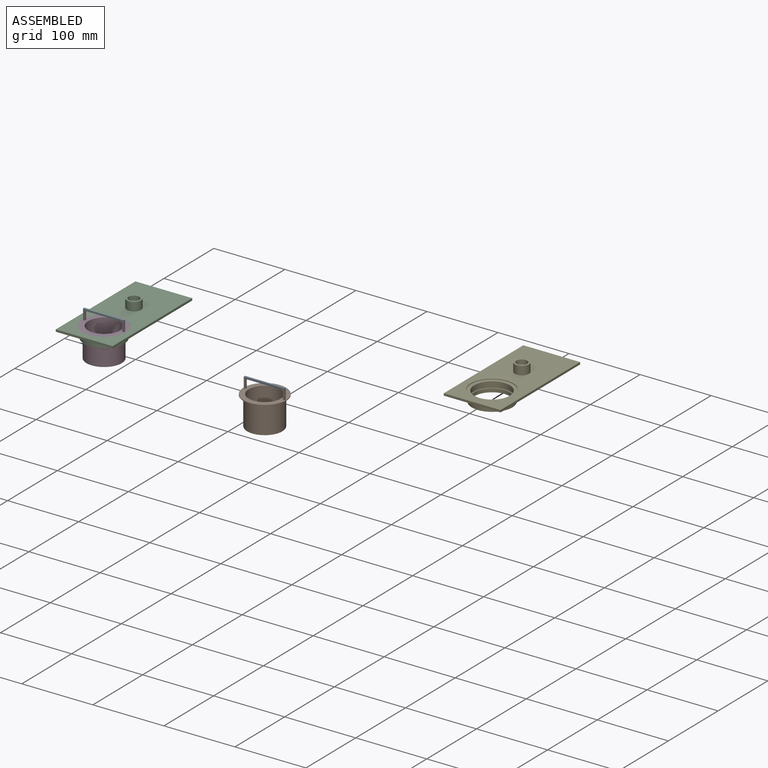
[diagram: assembled view]
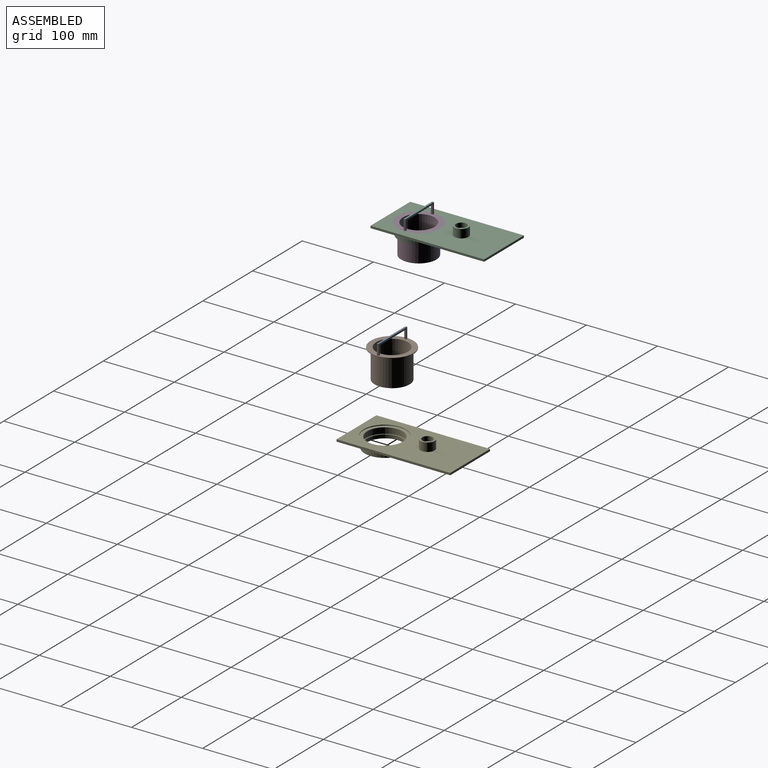
[diagram: assembled view, second angle]
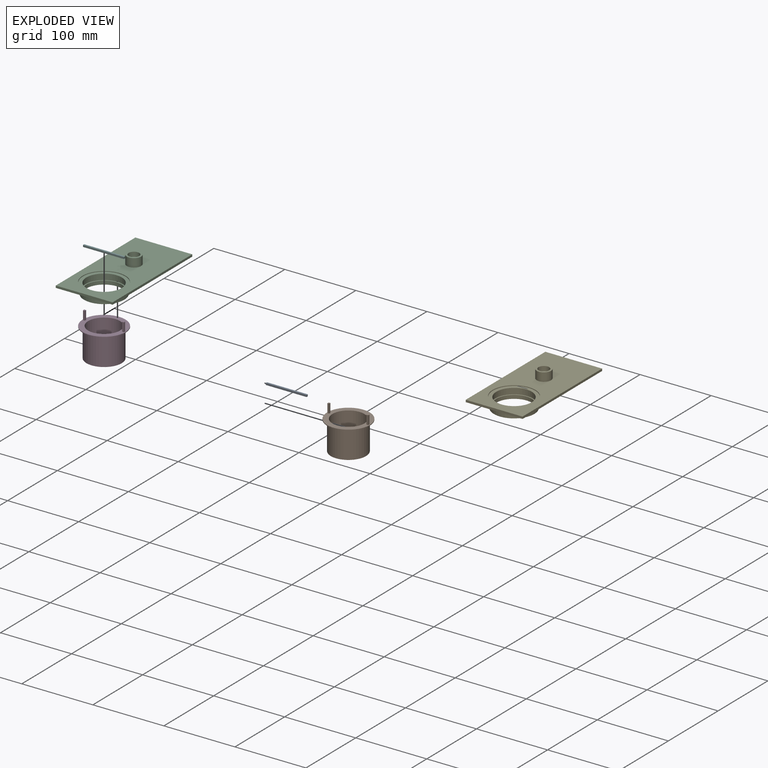
[diagram: exploded view]
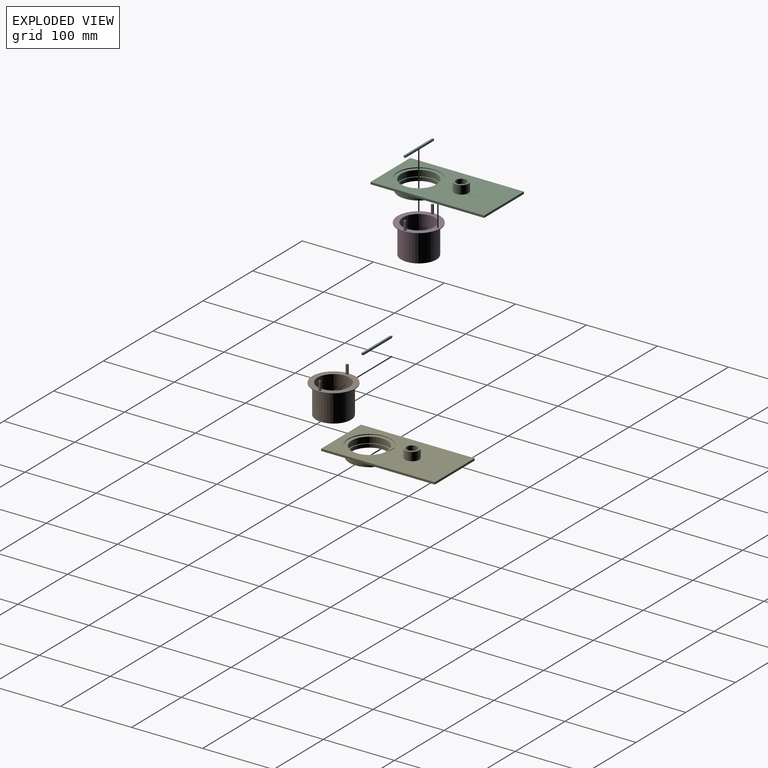
[diagram: exploded view, second angle]
ASSEMBLY  parts=6 mates=3
PART A: 6 faces, bbox 2.5x57.5x2.5 mm
  f0: plane 57.5x2.5mm, normal (0,0,-1), area 143.8mm2, adj f1,f3,f4,f5
  f1: plane 57.5x2.5mm, normal (1,0,0), area 143.8mm2, adj f0,f2,f4,f5
  f2: plane 57.5x2.5mm, normal (0,0,1), area 143.8mm2, adj f1,f3,f4,f5
  f3: plane 57.5x2.5mm, normal (-1,0,0), area 143.8mm2, adj f0,f2,f4,f5
  f4: plane 2.5x2.5mm, normal (0,-1,0), area 6.2mm2, adj f0,f1,f2,f3
  f5: plane 2.5x2.5mm, normal (0,1,0), area 6.2mm2, adj f0,f1,f2,f3
PART B: 17 faces, bbox 60x60x53.5 mm
  f0: plane 60x60mm, normal (0,0,1), area 1224.5mm2, adj f1,f4,f7,f8,f9,f10,f12,f13
  f1: cylinder r=30mm len=60mm, axis (0,0,1), area 188.5mm2, adj f0,f2
  f2: plane 60x60mm, normal (0,0,-1), area 903mm2, adj f1,f3
  f3: cylinder r=24.75mm len=49.5mm, axis (0,0,1), area 6220.4mm2, adj f2,f6
  f4: cylinder r=22.5mm len=45mm, axis (0,0,1), area 5654.9mm2, adj f0,f5
  f5: plane 45x45mm, normal (0,0,1), area 1590.4mm2, adj f4
  f6: plane 49.5x49.5mm, normal (0,0,-1), area 1924.4mm2, adj f3
  f7: plane 12.5x2.5mm, normal (0,-1,0), area 31.3mm2, adj f0,f8,f10,f11
  f8: plane 12.5x2.5mm, normal (1,0,0), area 31.2mm2, adj f0,f7,f9,f11
  f9: plane 12.5x2.5mm, normal (0,1,0), area 31.3mm2, adj f0,f8,f10,f11
  f10: plane 12.5x2.5mm, normal (-1,0,0), area 31.2mm2, adj f0,f7,f9,f11
  f11: plane 2.5x2.5mm, normal (0,0,1), area 6.3mm2, adj f7,f8,f9,f10
  f12: plane 12.5x2.5mm, normal (0,-1,0), area 31.3mm2, adj f0,f13,f15,f16
  f13: plane 12.5x2.5mm, normal (1,0,0), area 31.2mm2, adj f0,f12,f14,f16
  f14: plane 12.5x2.5mm, normal (0,1,0), area 31.3mm2, adj f0,f13,f15,f16
  f15: plane 12.5x2.5mm, normal (-1,0,0), area 31.2mm2, adj f0,f12,f14,f16
  f16: plane 2.5x2.5mm, normal (0,0,1), area 6.3mm2, adj f12,f13,f14,f15
PART C: 22 faces, bbox 80x160x27 mm
  f0: plane 17x17mm, normal (0,0,1), area 50.3mm2, adj f7,f18
  f1: plane 53x53mm, normal (0,0,-1), area 242.7mm2, adj f2,f13
  f2: cylinder r=25mm len=50mm, axis (0,0,1), area 1099.6mm2, adj f1,f11
  f3: plane 160x3mm, normal (-1,0,0), area 480mm2, adj f4,f6,f8,f9
  f4: plane 80x3mm, normal (0,-1,0), area 240mm2, adj f3,f5,f8,f9
  f5: plane 160x3mm, normal (1,0,0), area 480mm2, adj f4,f6,f8,f9
  f6: plane 80x3mm, normal (0,1,0), area 240mm2, adj f3,f5,f8,f9
  f7: cylinder r=7.5mm len=15mm, axis (0,0,1), area 377mm2, adj f0,f8
  f8: plane 160x80mm, normal (0,0,-1), area 10071.5mm2, adj f3,f4,f5,f6,f7,f12
  f9: plane 160x80mm, normal (0,0,1), area 9658.4mm2, adj f3,f4,f5,f6,f10,f17
  f10: cylinder r=30mm len=60mm, axis (0,0,1), area 188.5mm2, adj f9,f11
  f11: plane 60x60mm, normal (0,0,1), area 863.9mm2, adj f2,f10
  f12: cylinder r=28.5mm len=57mm, axis (0,0,1), area 2148.8mm2, adj f8,f16
  f13: cylinder r=26.5mm len=53mm, axis (0,0,1), area 333mm2, adj f1,f14
  f14: plane 53x53mm, normal (0,0,1), area 242.7mm2, adj f13,f15
  f15: cylinder r=25mm len=50mm, axis (0,0,1), area 785.4mm2, adj f14,f16
  f16: plane 57x57mm, normal (0,0,-1), area 588.3mm2, adj f12,f15
  f17: cylinder r=10mm len=20mm, axis (0,0,-1), area 754mm2, adj f9,f21
  f18: cylinder r=8.5mm len=17mm, axis (0,0,-1), area 106.8mm2, adj f0,f19
  f19: plane 17x17mm, normal (0,0,-1), area 50.3mm2, adj f18,f20
  f20: cylinder r=7.5mm len=15mm, axis (0,0,-1), area 235.6mm2, adj f19,f21
  f21: plane 20x20mm, normal (0,0,1), area 137.4mm2, adj f17,f20
PART D: same geometry as B
PART E: same geometry as C
PART F: same geometry as A
PLACE A rot(axis=(0,0,-1),90deg) t=(234.3,80.5,-29.26)mm
PLACE B t=(205.55,80.5,-43.01)mm
PLACE C t=(-3.81,-40.55,29.34)mm
PLACE D t=(36.19,-0.55,29.34)mm
PLACE E t=(384.99,183.99,-33.73)mm
PLACE F rot(axis=(0,0,-1),90deg) t=(64.94,-0.55,43.09)mm
MATE fastened F.f0 <-> D.f11  axis (0,0,-1) through (7.44,-0.55,41.84)mm
MATE fastened A.f0 <-> B.f11  axis (0,0,-1) through (176.8,80.5,-30.51)mm
MATE fastened D.f1 <-> C.f2  axis (0,0,-1) through (36.19,-0.55,28.34)mm
